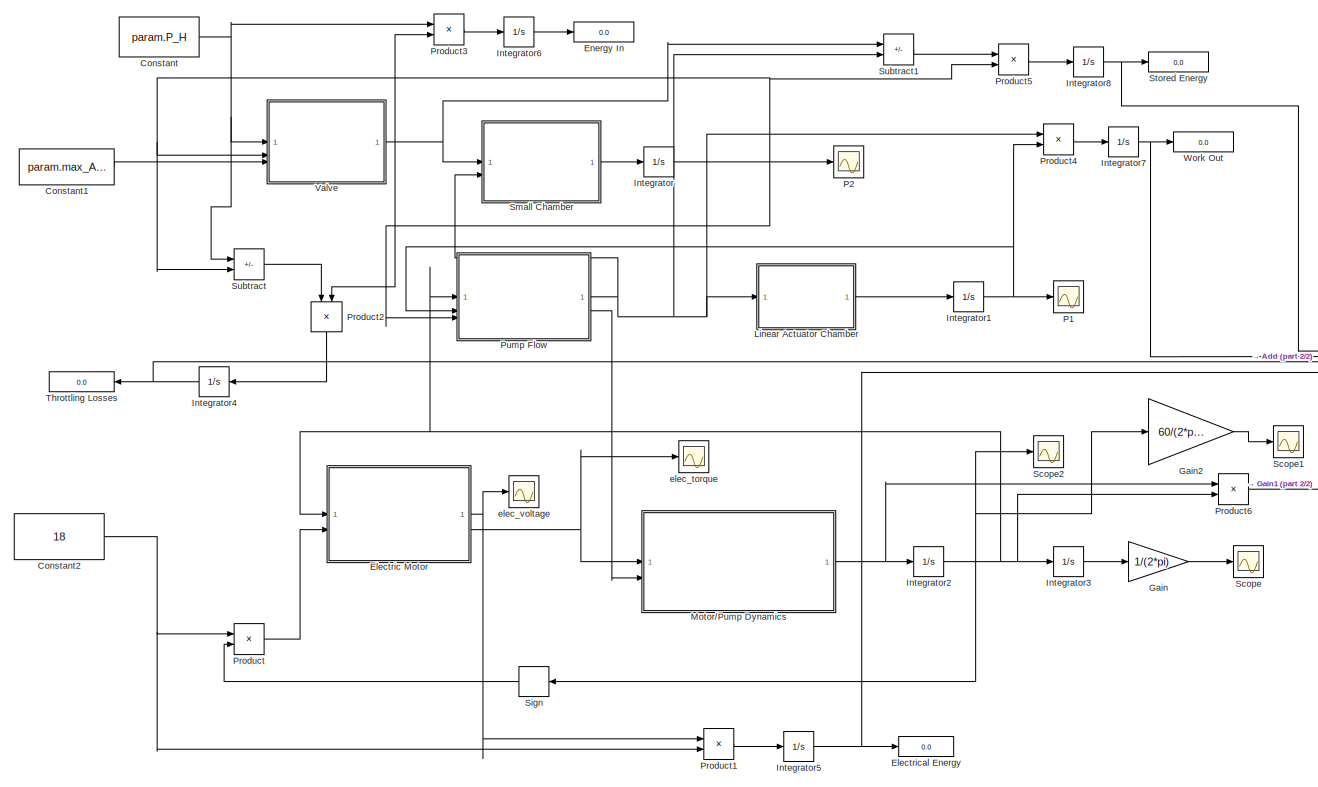
[diagram: root canvas - part 1/2, center side, full height]
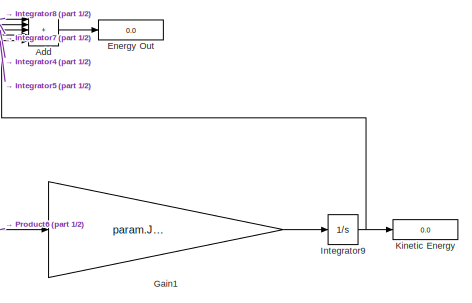
[diagram: root canvas - part 2/2, middle right region]
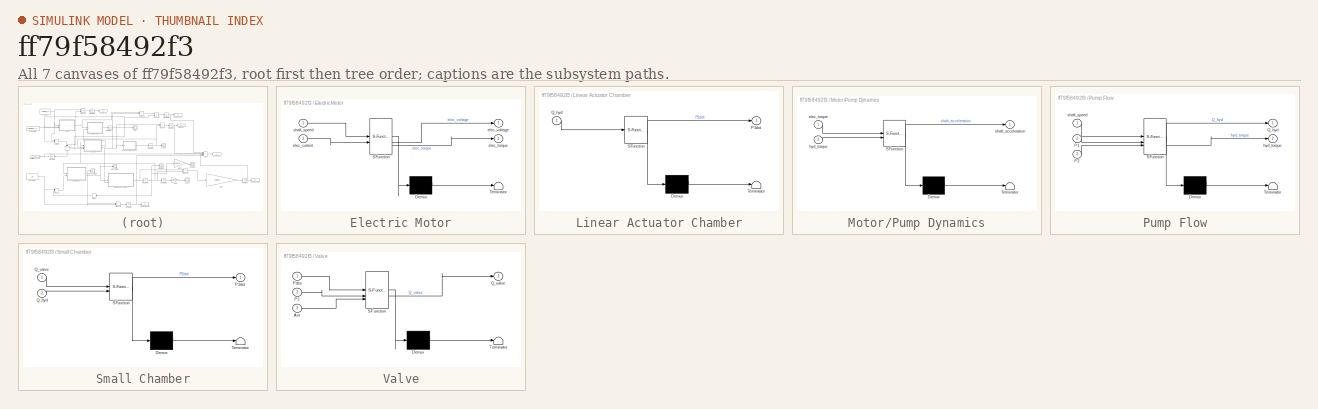
[diagram: thumbnail index - all 7 canvases of the model, root first then tree order]
MODEL slx_ff79f58492f3
KIND model
CONFIG AbsTol = auto
CONFIG EnableMultiTasking = off
CONFIG FixedStep = 1e-6
CONFIG InitFcn = %% Parameters\n\nparam = struct();\n\n% Volume of chambers \nparam.V1_0 = 0.5e-3;\nparam.V2_0 = 20e-6;\n\n% Pressure rails\nparam.P_H = 20e6;\nparam.P_M = 10e6;\n\n% Valve things\nparam.max_Avt = 0.5*0.25*pi*(20e-3)^2;\nparam.Cd = 0.6;\n\n% Fluid properties\nparam.beta = 1.8e9;\nparam.rho = 870;\n\n% Electric motor stuff\nparam.Kt = 70.5e-3;\nparam.Ke = 70.5e-3;\nparam.J_elec = 1.72e-7;\n\n% Pump things\nparam.J_hyd = 1330...<+43ch>
CONFIG MaxStep = 1e-5
CONFIG MinStep = auto
CONFIG RelTol = 1e-6
CONFIG SampleTimeConstraint = Unconstrained
CONFIG SolverName = ode4
CONFIG StartTime = 0.0
CONFIG StopTime = 0.2
BLOCK [Sum] Add
  IconShape = rectangular
  Inputs = +++++
BLOCK [Constant] Constant
  Value = param.P_H
BLOCK [Constant] Constant1
  Value = param.max_Avt
BLOCK [Constant] Constant2
  Value = 18
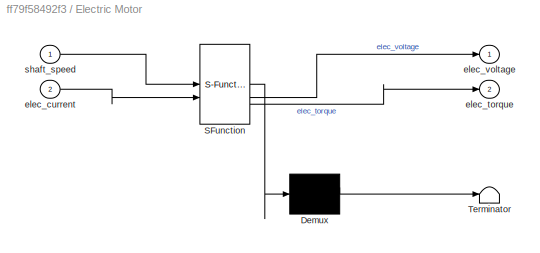
BLOCK [SubSystem] Electric Motor
  ErrorFcn = Stateflow.Translate.translate
  PermitHierarchicalResolution = ExplicitOnly
  SFBlockType = MATLAB Function
  TreatAsAtomicUnit = on
BLOCK [Demux] Electric Motor/ Demux 
  Outputs = 1
BLOCK [S-Function] Electric Motor/ SFunction 
  EnableBusSupport = on
  FunctionName = sf_sfun
  Parameters = param
  PortCounts = [2 3]
  SFcnIsStateOwnerBlock = off
  SFunctionDeploymentMode = off
  Tag = Stateflow S-Function 4
BLOCK [Terminator] Electric Motor/ Terminator 
BLOCK [Inport] Electric Motor/elec_current
  Port = 2
BLOCK [Outport] Electric Motor/elec_torque
  Port = 2
BLOCK [Outport] Electric Motor/elec_voltage
BLOCK [Inport] Electric Motor/shaft_speed
BLOCK [Display] Electrical Energy
  Decimation = 1
BLOCK [Display] Energy In
  Decimation = 1
BLOCK [Display] Energy Out
  Decimation = 1
BLOCK [Gain] Gain
  Gain = 1/(2*pi)
BLOCK [Gain] Gain1
  Gain = param.J_elec + param.J_hyd
BLOCK [Gain] Gain2
  Gain = 60/(2*pi)
BLOCK [Integrator] Integrator
  InitialCondition = param.P_M
BLOCK [Integrator] Integrator1
  InitialCondition = param.P_M
BLOCK [Integrator] Integrator2
BLOCK [Integrator] Integrator3
BLOCK [Integrator] Integrator4
  NameLocation = top
BLOCK [Integrator] Integrator5
BLOCK [Integrator] Integrator6
BLOCK [Integrator] Integrator7
BLOCK [Integrator] Integrator8
BLOCK [Integrator] Integrator9
BLOCK [Display] Kinetic Energy
  Decimation = 1
BLOCK [SubSystem] Linear Actuator Chamber
  ErrorFcn = Stateflow.Translate.translate
  PermitHierarchicalResolution = ExplicitOnly
  SFBlockType = MATLAB Function
  TreatAsAtomicUnit = on
BLOCK [Demux] Linear Actuator Chamber/ Demux 
  Outputs = 1
BLOCK [S-Function] Linear Actuator Chamber/ SFunction 
  EnableBusSupport = on
  FunctionName = sf_sfun
  Parameters = param
  PortCounts = [1 2]
  SFcnIsStateOwnerBlock = off
  SFunctionDeploymentMode = off
  Tag = Stateflow S-Function 5
BLOCK [Terminator] Linear Actuator Chamber/ Terminator 
BLOCK [Outport] Linear Actuator Chamber/P1dot
BLOCK [Inport] Linear Actuator Chamber/Q_hyd
BLOCK [SubSystem] Motor//Pump Dynamics
  ErrorFcn = Stateflow.Translate.translate
  PermitHierarchicalResolution = ExplicitOnly
  SFBlockType = MATLAB Function
  TreatAsAtomicUnit = on
BLOCK [Demux] Motor//Pump Dynamics/ Demux 
  Outputs = 1
BLOCK [S-Function] Motor//Pump Dynamics/ SFunction 
  EnableBusSupport = on
  FunctionName = sf_sfun
  Parameters = param
  PortCounts = [2 2]
  SFcnIsStateOwnerBlock = off
  SFunctionDeploymentMode = off
  Tag = Stateflow S-Function 6
BLOCK [Terminator] Motor//Pump Dynamics/ Terminator 
BLOCK [Inport] Motor//Pump Dynamics/elec_torque
BLOCK [Inport] Motor//Pump Dynamics/hyd_torque
  Port = 2
BLOCK [Outport] Motor//Pump Dynamics/shaft_acceleration
BLOCK [Scope] P1
  Floating = off
  NumInputPorts = 1
  ScopeSpecificationString = Simulink.scopes.TimeScopeBlockCfg('CurrentConfiguration', extmgr.ConfigurationSet(extmgr.Configuration('Core','General UI',true),extmgr.Configuration('Core','Source UI',true),extmgr.Configuration('Sources','WiredSimulink',true),extmgr.Configuration('Visuals','Time Domain',true,'SerializedDisplays',{struct('MinYLimReal','7978180.12823','MaxYLimReal','28196378.82132','YLabelReal','','MinYLimMag','79...<+1452ch>
BLOCK [Scope] P2
  Floating = off
  NumInputPorts = 1
  ScopeSpecificationString = Simulink.scopes.TimeScopeBlockCfg('CurrentConfiguration', extmgr.ConfigurationSet(extmgr.Configuration('Core','General UI',true),extmgr.Configuration('Core','Source UI',true),extmgr.Configuration('Sources','WiredSimulink',true,'DataLoggingVariableName','ScopeData1'),extmgr.Configuration('Visuals','Time Domain',true,'SerializedDisplays',{struct('MinYLimReal','19989557.4632','MaxYLimReal','19990071....<+1490ch>
BLOCK [Product] Product
BLOCK [Product] Product1
BLOCK [Product] Product2
  NameLocation = left
BLOCK [Product] Product3
BLOCK [Product] Product4
BLOCK [Product] Product5
BLOCK [Product] Product6
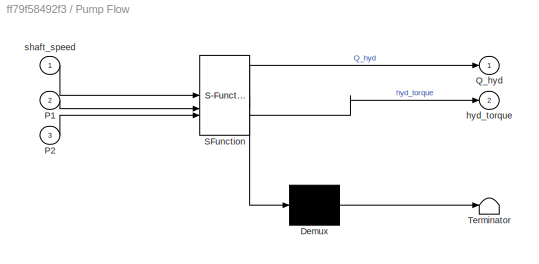
BLOCK [SubSystem] Pump Flow
  ErrorFcn = Stateflow.Translate.translate
  PermitHierarchicalResolution = ExplicitOnly
  SFBlockType = MATLAB Function
  TreatAsAtomicUnit = on
BLOCK [Demux] Pump Flow/ Demux 
  Outputs = 1
BLOCK [S-Function] Pump Flow/ SFunction 
  EnableBusSupport = on
  FunctionName = sf_sfun
  Parameters = param
  PortCounts = [3 3]
  SFcnIsStateOwnerBlock = off
  SFunctionDeploymentMode = off
  Tag = Stateflow S-Function 3
BLOCK [Terminator] Pump Flow/ Terminator 
BLOCK [Inport] Pump Flow/P1
  Port = 2
BLOCK [Inport] Pump Flow/P2
  Port = 3
BLOCK [Outport] Pump Flow/Q_hyd
BLOCK [Outport] Pump Flow/hyd_torque
  Port = 2
BLOCK [Inport] Pump Flow/shaft_speed
BLOCK [Scope] Scope
  Floating = off
  NumInputPorts = 1
  ScopeSpecificationString = Simulink.scopes.TimeScopeBlockCfg('CurrentConfiguration', extmgr.ConfigurationSet(extmgr.Configuration('Core','General UI',true),extmgr.Configuration('Core','Source UI',true),extmgr.Configuration('Sources','WiredSimulink',true,'DataLoggingVariableName','ScopeData3'),extmgr.Configuration('Visuals','Time Domain',true,'SerializedDisplays',{struct('MinYLimReal','-0.8703','MaxYLimReal','7.83274','YLabe...<+1407ch>
BLOCK [Scope] Scope1
  Floating = off
  NumInputPorts = 1
  ScopeSpecificationString = Simulink.scopes.TimeScopeBlockCfg('CurrentConfiguration', extmgr.ConfigurationSet(extmgr.Configuration('Core','General UI',true),extmgr.Configuration('Core','Source UI',true),extmgr.Configuration('Sources','WiredSimulink',true,'DataLoggingVariableName','ScopeData1'),extmgr.Configuration('Visuals','Time Domain',true,'SerializedDisplays',{struct('MinYLimReal','-273.47951','MaxYLimReal','2460.85904',...<+1409ch>
BLOCK [Scope] Scope2
  Floating = off
  NumInputPorts = 1
  ScopeSpecificationString = Simulink.scopes.TimeScopeBlockCfg('CurrentConfiguration', extmgr.ConfigurationSet(extmgr.Configuration('Core','General UI',true),extmgr.Configuration('Core','Source UI',true),extmgr.Configuration('Sources','WiredSimulink',true,'DataLoggingVariableName','ScopeData5'),extmgr.Configuration('Visuals','Time Domain',true,'SerializedDisplays',{struct('MinYLimReal','114.36541','MaxYLimReal','495.94854','Y...<+1455ch>
BLOCK [Signum] Sign
  NameLocation = top
BLOCK [SubSystem] Small Chamber
  ErrorFcn = Stateflow.Translate.translate
  PermitHierarchicalResolution = ExplicitOnly
  SFBlockType = MATLAB Function
  TreatAsAtomicUnit = on
BLOCK [Demux] Small Chamber/ Demux 
  Outputs = 1
BLOCK [S-Function] Small Chamber/ SFunction 
  EnableBusSupport = on
  FunctionName = sf_sfun
  Parameters = param
  PortCounts = [2 2]
  SFcnIsStateOwnerBlock = off
  SFunctionDeploymentMode = off
  Tag = Stateflow S-Function 1
BLOCK [Terminator] Small Chamber/ Terminator 
BLOCK [Outport] Small Chamber/P2dot
BLOCK [Inport] Small Chamber/Q_hyd
  Port = 2
BLOCK [Inport] Small Chamber/Q_valve
BLOCK [Display] Stored Energy
  Decimation = 1
BLOCK [Sum] Subtract
  IconShape = rectangular
  Inputs = +-
BLOCK [Sum] Subtract1
  IconShape = rectangular
  Inputs = +-
BLOCK [Display] Throttling Losses
  Decimation = 1
  NameLocation = top
BLOCK [SubSystem] Valve
  ErrorFcn = Stateflow.Translate.translate
  PermitHierarchicalResolution = ExplicitOnly
  SFBlockType = MATLAB Function
  TreatAsAtomicUnit = on
BLOCK [Demux] Valve/ Demux 
  Outputs = 1
BLOCK [S-Function] Valve/ SFunction 
  EnableBusSupport = on
  FunctionName = sf_sfun
  Parameters = param
  PortCounts = [3 2]
  SFcnIsStateOwnerBlock = off
  SFunctionDeploymentMode = off
  Tag = Stateflow S-Function 2
BLOCK [Terminator] Valve/ Terminator 
BLOCK [Inport] Valve/Avt
  Port = 3
BLOCK [Inport] Valve/P2
  Port = 2
BLOCK [Inport] Valve/Pdes
BLOCK [Outport] Valve/Q_valve
BLOCK [Display] Work Out
  Decimation = 1
BLOCK [Scope] elec_torque
  Floating = off
  NumInputPorts = 1
  ScopeSpecificationString = Simulink.scopes.TimeScopeBlockCfg('CurrentConfiguration', extmgr.ConfigurationSet(extmgr.Configuration('Core','General UI',true),extmgr.Configuration('Core','Source UI',true),extmgr.Configuration('Sources','WiredSimulink',true,'DataLoggingVariableName','ScopeData4'),extmgr.Configuration('Visuals','Time Domain',true,'SerializedDisplays',{struct('MinYLimReal','-2.37937','MaxYLimReal','2.37937','YLab...<+1482ch>
BLOCK [Scope] elec_voltage
  Floating = off
  NumInputPorts = 1
  ScopeSpecificationString = Simulink.scopes.TimeScopeBlockCfg('CurrentConfiguration', extmgr.ConfigurationSet(extmgr.Configuration('Core','General UI',true),extmgr.Configuration('Core','Source UI',true),extmgr.Configuration('Sources','WiredSimulink',true,'DataLoggingVariableName','ScopeData2'),extmgr.Configuration('Visuals','Time Domain',true,'SerializedDisplays',{struct('MinYLimReal','-52.9547','MaxYLimReal','52.97045','YLa...<+1391ch>
LINE Add:1 -> Energy Out:1
LINE Constant1:1 -> Valve:3
NET Constant2:1 -> Product1:2, Product:1
NET Constant:1 -> Product3:1, Subtract:1, Valve:1
NET Electric Motor:1 -> Product1:1, elec_voltage:1
NET Electric Motor:2 -> Motor//Pump Dynamics:1, elec_torque:1
LINE Gain1:1 -> Integrator9:1
LINE Gain2:1 -> Scope1:1
LINE Gain:1 -> Scope:1
NET Integrator1:1 -> P1:1, Product4:2, Pump Flow:2
NET Integrator2:1 -> Electric Motor:1, Gain2:1, Integrator3:1, Product6:2, Pump Flow:1, Scope2:1, Sign:1
LINE Integrator3:1 -> Gain:1
NET Integrator4:1 -> Add:3, Throttling Losses:1
NET Integrator5:1 -> Add:5, Electrical Energy:1
LINE Integrator6:1 -> Energy In:1
NET Integrator7:1 -> Add:2, Work Out:1
NET Integrator8:1 -> Add:1, Stored Energy:1
NET Integrator9:1 -> Add:4, Kinetic Energy:1
NET Integrator:1 -> P2:1, Product5:2, Pump Flow:3, Subtract:2, Valve:2
LINE Linear Actuator Chamber:1 -> Integrator1:1
NET Motor//Pump Dynamics:1 -> Integrator2:1, Product6:1
LINE Product1:1 -> Integrator5:1
LINE Product2:1 -> Integrator4:1
LINE Product3:1 -> Integrator6:1
LINE Product4:1 -> Integrator7:1
LINE Product5:1 -> Integrator8:1
LINE Product6:1 -> Gain1:1
LINE Product:1 -> Electric Motor:2
NET Pump Flow:1 -> Linear Actuator Chamber:1, Product4:1, Small Chamber:2, Subtract1:2
LINE Pump Flow:2 -> Motor//Pump Dynamics:2
LINE Sign:1 -> Product:2
LINE Small Chamber:1 -> Integrator:1
LINE Subtract1:1 -> Product5:1
LINE Subtract:1 -> Product2:1
NET Valve:1 -> Product2:2, Product3:2, Small Chamber:1, Subtract1:1
note: NET lines group one-source signal fan-out (src -> all destinations, sorted); 1:1 wires keep LINE
CHART Small Chamber states=1 transitions=1
  STATE_LABEL 'eML_blk_kernel()'
  STATE_LABEL 'SCRIPT:\nfunction P2dot = fcn(param, Q_valve, Q_hyd)\n\nP2dot = (param.beta/param.V2_0)*(Q_valve - Q_hyd);\n'
CHART Valve states=1 transitions=1
  STATE_LABEL 'eML_blk_kernel()'
  STATE_LABEL 'SCRIPT:\nfunction Q_valve = fcn(Pdes, P2, Avt, param)\n\nQ_valve = param.Cd*Avt*sqrt((2/param.rho)*abs(Pdes-P2))*sign(Pdes-P2);\n'
CHART Pump Flow states=1 transitions=1
  STATE_LABEL 'eML_blk_kernel()'
  STATE_LABEL 'SCRIPT:\nfunction [Q_hyd, hyd_torque] = fcn(param, shaft_speed, P1, P2)\n\nQ_hyd = (param.hyd_D/(2*pi))*shaft_speed;\n\nhyd_torque = (param.hyd_D/(2*pi))*(P2 - P1);\n\n% Q_pump = (param.hyd_D/(2*pi))*shaft_speed;'
CHART Electric Motor states=1 transitions=1
  STATE_LABEL 'eML_blk_kernel()'
  STATE_LABEL 'SCRIPT:\nfunction [elec_voltage, elec_torque] = fcn(param, shaft_speed, elec_current)\n\nelec_voltage = param.Ke*shaft_speed;\n\nelec_torque = param.Kt*elec_current;\n'
CHART Linear Actuator Chamber states=1 transitions=1
  STATE_LABEL 'eML_blk_kernel()'
  STATE_LABEL 'SCRIPT:\nfunction P1dot = fcn(param, Q_hyd)\n\nP1dot = (param.beta/param.V1_0)*Q_hyd;\n'
CHART Motor//Pump Dynamics states=1 transitions=1
  STATE_LABEL 'eML_blk_kernel()'
  STATE_LABEL 'SCRIPT:\nfunction shaft_acceleration = fcn(param, elec_torque, hyd_torque)\n\nshaft_acceleration = (1/(param.J_hyd+param.J_elec))*(hyd_torque - elec_torque);\n'
CHART  states=0 transitions=0
CHART  states=0 transitions=0
CHART  states=0 transitions=0
CHART  states=0 transitions=0
CHART  states=0 transitions=0
CHART  states=0 transitions=0
